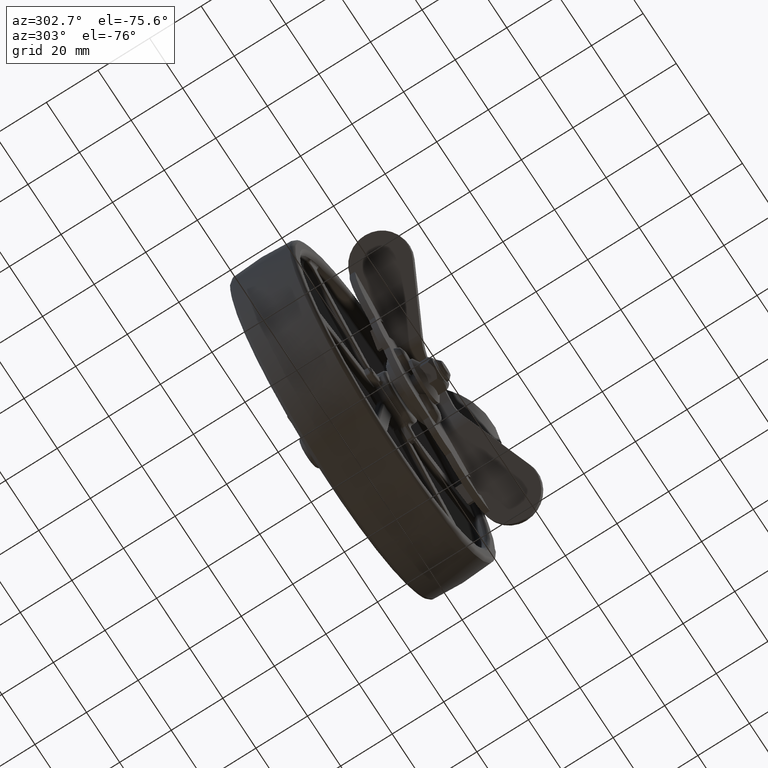
[diagram: clean part render]
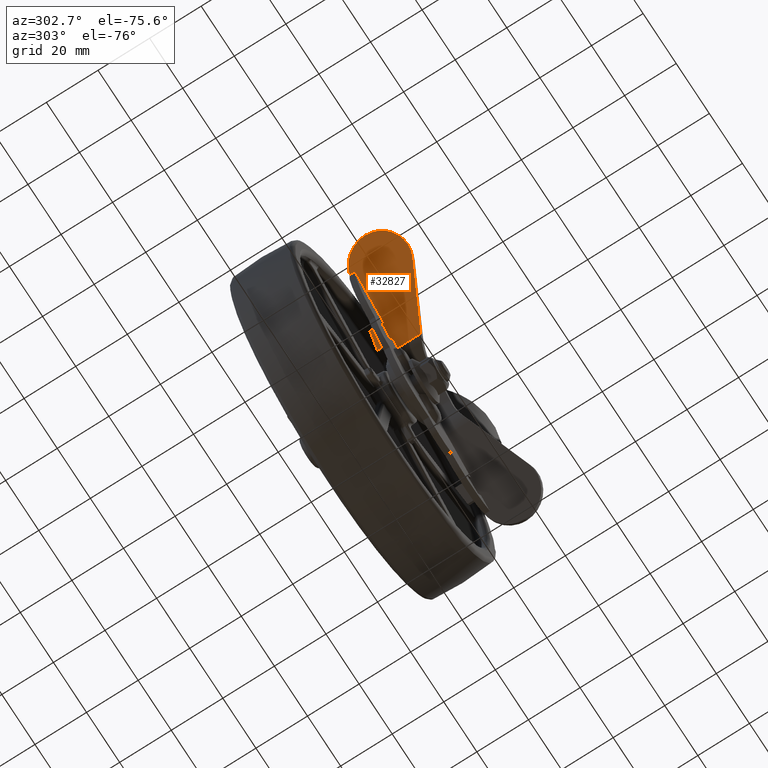
[diagram: same view with one face highlighted and labeled with its STEP entity id]
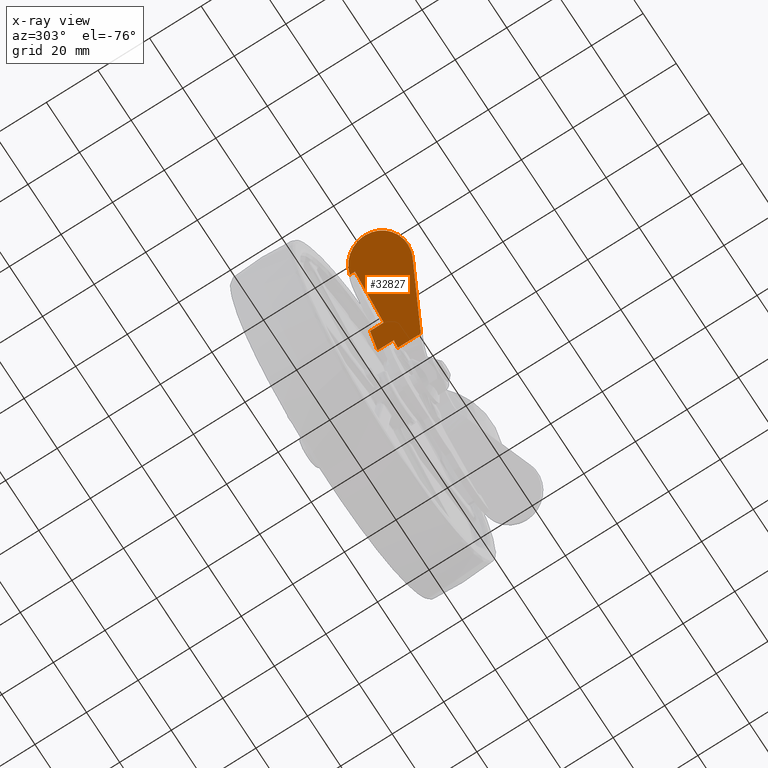
[diagram: x-ray of the same camera — body ghosted, the highlighted face saturated]
A machine part, auxiliary view. The second image highlights one B-rep face of the part: STEP entity #32827.
The next image is the same camera in x-ray: the body ghosted, the highlighted face saturated — about 0% of this face is hidden behind the body in this view.
In plain terms, the highlighted face is a freeform B-spline surface patch.
Its self-contained STEP definition (entity closure, byte-faithful):
#31539=CARTESIAN_POINT('',(-19.999994604672398,-18.300000000000001,7.649978624725780));
#31540=VERTEX_POINT('',#31539);
#31541=CARTESIAN_POINT('',(-19.999994604697601,-14.300000000000001,7.649980063593411));
#31542=VERTEX_POINT('',#31541);
#31543=CARTESIAN_POINT('',(-19.999994604672398,-18.300000000000001,7.649978624725780));
#31544=CARTESIAN_POINT('',(-19.999994604697601,-14.300000000000001,7.649980063593411));
#31545=QUASI_UNIFORM_CURVE('',1,(#31543,#31544),.UNSPECIFIED.,.F.,.U.);
#31546=EDGE_CURVE('',#31540,#31542,#31545,.T.);
#31574=CARTESIAN_POINT('',(-26.999945601030049,-15.300000000000001,7.649980063593411));
#31575=VERTEX_POINT('',#31574);
#31576=CARTESIAN_POINT('',(-26.999945601030049,-18.300000000000001,7.649980063593411));
#31577=VERTEX_POINT('',#31576);
#31578=CARTESIAN_POINT('',(-26.999945601030049,-15.300000000000001,7.649980063593411));
#31579=CARTESIAN_POINT('',(-26.999945601030049,-18.300000000000001,7.649980063593411));
#31580=QUASI_UNIFORM_CURVE('',1,(#31578,#31579),.UNSPECIFIED.,.F.,.U.);
#31581=EDGE_CURVE('',#31575,#31577,#31580,.T.);
#31609=CARTESIAN_POINT('',(-19.999994604697601,-14.300000000000001,7.649980063593411));
#31610=CARTESIAN_POINT('',(-26.999945601030049,-15.300000000000001,7.649980063593411));
#31611=QUASI_UNIFORM_CURVE('',1,(#31609,#31610),.UNSPECIFIED.,.F.,.U.);
#31612=EDGE_CURVE('',#31542,#31575,#31611,.T.);
#31631=CARTESIAN_POINT('',(-19.999994604672398,-20.600000000000001,7.649978624725780));
#31632=VERTEX_POINT('',#31631);
#31638=CARTESIAN_POINT('',(-19.999994604672398,-18.300000000000001,7.649978624725780));
#31639=CARTESIAN_POINT('',(-19.999994604672398,-20.600000000000001,7.649978624725780));
#31640=QUASI_UNIFORM_CURVE('',1,(#31638,#31639),.UNSPECIFIED.,.F.,.U.);
#31641=EDGE_CURVE('',#31540,#31632,#31640,.T.);
#31691=CARTESIAN_POINT('',(-26.999941649886900,-20.600000000000001,7.649979115490890));
#31692=VERTEX_POINT('',#31691);
#31704=CARTESIAN_POINT('',(-26.999945601030049,-18.300000000000001,7.649980063593411));
#31705=CARTESIAN_POINT('',(-26.999941649886900,-20.600000000000001,7.649979115490890));
#31706=QUASI_UNIFORM_CURVE('',1,(#31704,#31705),.UNSPECIFIED.,.F.,.U.);
#31707=EDGE_CURVE('',#31577,#31692,#31706,.T.);
#31834=CARTESIAN_POINT('',(-46.999979737671502,-18.526410372112998,7.649982614401890));
#31835=VERTEX_POINT('',#31834);
#31843=CARTESIAN_POINT('',(-55.749949705107497,-29.240069770663350,7.649983841319810));
#31844=VERTEX_POINT('',#31843);
#31845=CARTESIAN_POINT('',(-46.999979737671502,-18.526410372112998,7.649982614401890));
#31846=CARTESIAN_POINT('',(-47.648937658100678,-18.660291072229370,7.649982705398535));
#31847=CARTESIAN_POINT('',(-48.847521418006409,-19.023554097752370,7.649982873463602));
#31848=CARTESIAN_POINT('',(-50.700193926103573,-19.952398498067279,7.649983133244713));
#31849=CARTESIAN_POINT('',(-52.564272302435207,-21.388985133994090,7.649983394625131));
#31850=CARTESIAN_POINT('',(-54.109719427304832,-23.323187679904620,7.649983611327347));
#31851=CARTESIAN_POINT('',(-55.063920686072947,-25.297568224208948,7.649983745124904));
#31852=CARTESIAN_POINT('',(-55.614163292160832,-27.213570981187321,7.649983822280189));
#31853=CARTESIAN_POINT('',(-55.748246725194832,-28.499477480300460,7.649983841080576));
#31854=CARTESIAN_POINT('',(-55.749949705107497,-29.240069770663350,7.649983841319810));
#31855=B_SPLINE_CURVE_WITH_KNOTS('',3,(#31845,#31846,#31847,#31848,#31849,#31850,#31851,#31852,#31853,#31854),.UNSPECIFIED.,.F.,.U.,(4,1,1,1,1,1,1,4),(0.000000148869601,1.987867137949204,3.741928575651599,6.197574344088473,9.003987848254742,11.108846189623780,12.745948090340731,14.967710919879821),.UNSPECIFIED.);
#31856=EDGE_CURVE('',#31835,#31844,#31855,.T.);
#32016=CARTESIAN_POINT('',(-55.749949705107497,-29.293803229337449,7.649983841319810));
#32017=VERTEX_POINT('',#32016);
#32023=CARTESIAN_POINT('',(-40.523045019344949,-39.372681740579502,7.649980063593411));
#32024=VERTEX_POINT('',#32023);
#32025=CARTESIAN_POINT('',(-55.749949705107497,-29.293803229337449,7.649983841319810));
#32026=CARTESIAN_POINT('',(-55.747738951392080,-30.417551051067221,7.649983785048903));
#32027=CARTESIAN_POINT('',(-55.437429824885832,-32.382951295033820,7.649983620676895));
#32028=CARTESIAN_POINT('',(-54.317628391111263,-34.856126331493648,7.649983256865603));
#32029=CARTESIAN_POINT('',(-52.799655657796798,-36.893920283801101,7.649982828972616));
#32030=CARTESIAN_POINT('',(-51.066071201883972,-38.354083214703770,7.649982383353186));
#32031=CARTESIAN_POINT('',(-49.179042172233629,-39.366311855475153,7.649981926948104));
#32032=CARTESIAN_POINT('',(-47.312756694809792,-40.008033112650963,7.649981493403578));
#32033=CARTESIAN_POINT('',(-45.297975773823481,-40.289862071123828,7.649981045767412));
#32034=CARTESIAN_POINT('',(-42.933057262604763,-40.164061665876950,7.649980543009900));
#32035=CARTESIAN_POINT('',(-41.403091371178618,-39.743985963628710,7.649980234571091));
#32036=CARTESIAN_POINT('',(-40.523045019344949,-39.372681740579502,7.649980063593411));
#32037=B_SPLINE_CURVE_WITH_KNOTS('',3,(#32025,#32026,#32027,#32028,#32029,#32030,#32031,#32032,#32033,#32034,#32035,#32036),.UNSPECIFIED.,.F.,.U.,(4,1,1,1,1,1,1,1,1,4),(0.000000154198712,3.371115420026051,5.899498271181287,8.090789835419473,10.956182408024731,12.641773842404710,14.495881030895781,16.855705468041162,18.709876695441292,21.575302028678799),.UNSPECIFIED.);
#32038=EDGE_CURVE('',#32017,#32024,#32037,.T.);
#32079=CARTESIAN_POINT('',(-17.093880880328150,-29.496293358925250,7.649978420978481));
#32080=VERTEX_POINT('',#32079);
#32081=CARTESIAN_POINT('',(-40.523045019344949,-39.372681740579502,7.649980063593411));
#32082=CARTESIAN_POINT('',(-17.093880880328150,-29.496293358925250,7.649978420978481));
#32083=QUASI_UNIFORM_CURVE('',1,(#32081,#32082),.UNSPECIFIED.,.F.,.U.);
#32084=EDGE_CURVE('',#32024,#32080,#32083,.T.);
#32769=CARTESIAN_POINT('',(-17.093880880328150,-20.600000000000001,7.649978420978640));
#32770=VERTEX_POINT('',#32769);
#32771=CARTESIAN_POINT('',(-17.093880880328150,-20.600000000000001,7.649978420978640));
#32772=CARTESIAN_POINT('',(-17.093880880328150,-29.496293358925250,7.649978420978481));
#32773=QUASI_UNIFORM_CURVE('',1,(#32771,#32772),.UNSPECIFIED.,.F.,.U.);
#32774=EDGE_CURVE('',#32770,#32080,#32773,.T.);
#32789=CARTESIAN_POINT('',(-57.680820855626671,-41.529128078877640,7.649984112065891));
#32790=CARTESIAN_POINT('',(-15.163012149094291,-41.529128078877640,7.649978150232732));
#32791=CARTESIAN_POINT('',(-57.680820855626671,-13.004609145562480,7.649984112065891));
#32792=CARTESIAN_POINT('',(-15.163012149094291,-13.004609145562480,7.649978150232732));
#32793=B_SPLINE_SURFACE_WITH_KNOTS('',1,1,((#32789,#32791),(#32790,#32792)),.UNSPECIFIED.,.F.,.F.,.U.,(2,2),(2,2),(0.0,42.517808706532797),(0.0,28.524518933315161),.UNSPECIFIED.);
#32794=ORIENTED_EDGE('',*,*,#31856,.F.);
#32795=CARTESIAN_POINT('',(-46.999978521824097,-20.600000000000001,7.649980517690090));
#32796=VERTEX_POINT('',#32795);
#32797=CARTESIAN_POINT('',(-46.999979737671502,-18.526410372112998,7.649982614401890));
#32798=CARTESIAN_POINT('',(-46.999978521824097,-20.600000000000001,7.649980517690090));
#32799=QUASI_UNIFORM_CURVE('',1,(#32797,#32798),.UNSPECIFIED.,.F.,.U.);
#32800=EDGE_CURVE('',#31835,#32796,#32799,.T.);
#32801=ORIENTED_EDGE('',*,*,#32800,.T.);
#32802=CARTESIAN_POINT('',(-46.999978521824097,-20.600000000000001,7.649980517690090));
#32803=CARTESIAN_POINT('',(-26.999941649886900,-20.600000000000001,7.649979115490890));
#32804=QUASI_UNIFORM_CURVE('',1,(#32802,#32803),.UNSPECIFIED.,.F.,.U.);
#32805=EDGE_CURVE('',#32796,#31692,#32804,.T.);
#32806=ORIENTED_EDGE('',*,*,#32805,.T.);
#32807=ORIENTED_EDGE('',*,*,#31707,.F.);
#32808=ORIENTED_EDGE('',*,*,#31581,.F.);
#32809=ORIENTED_EDGE('',*,*,#31612,.F.);
#32810=ORIENTED_EDGE('',*,*,#31546,.F.);
#32811=ORIENTED_EDGE('',*,*,#31641,.T.);
#32812=CARTESIAN_POINT('',(-19.999994604672398,-20.600000000000001,7.649978624725780));
#32813=CARTESIAN_POINT('',(-17.093880880328150,-20.600000000000001,7.649978420978640));
#32814=QUASI_UNIFORM_CURVE('',1,(#32812,#32813),.UNSPECIFIED.,.F.,.U.);
#32815=EDGE_CURVE('',#31632,#32770,#32814,.T.);
#32816=ORIENTED_EDGE('',*,*,#32815,.T.);
#32817=ORIENTED_EDGE('',*,*,#32774,.T.);
#32818=ORIENTED_EDGE('',*,*,#32084,.F.);
#32819=ORIENTED_EDGE('',*,*,#32038,.F.);
#32820=CARTESIAN_POINT('',(-55.749949705107497,-29.240069770663350,7.649983841319810));
#32821=CARTESIAN_POINT('',(-55.749949705107497,-29.293803229337449,7.649983841319810));
#32822=QUASI_UNIFORM_CURVE('',1,(#32820,#32821),.UNSPECIFIED.,.F.,.U.);
#32823=EDGE_CURVE('',#31844,#32017,#32822,.T.);
#32824=ORIENTED_EDGE('',*,*,#32823,.F.);
#32825=EDGE_LOOP('',(#32794,#32801,#32806,#32807,#32808,#32809,#32810,#32811,#32816,#32817,#32818,#32819,#32824));
#32826=FACE_OUTER_BOUND('',#32825,.T.);
#32827=ADVANCED_FACE('',(#32826),#32793,.F.);